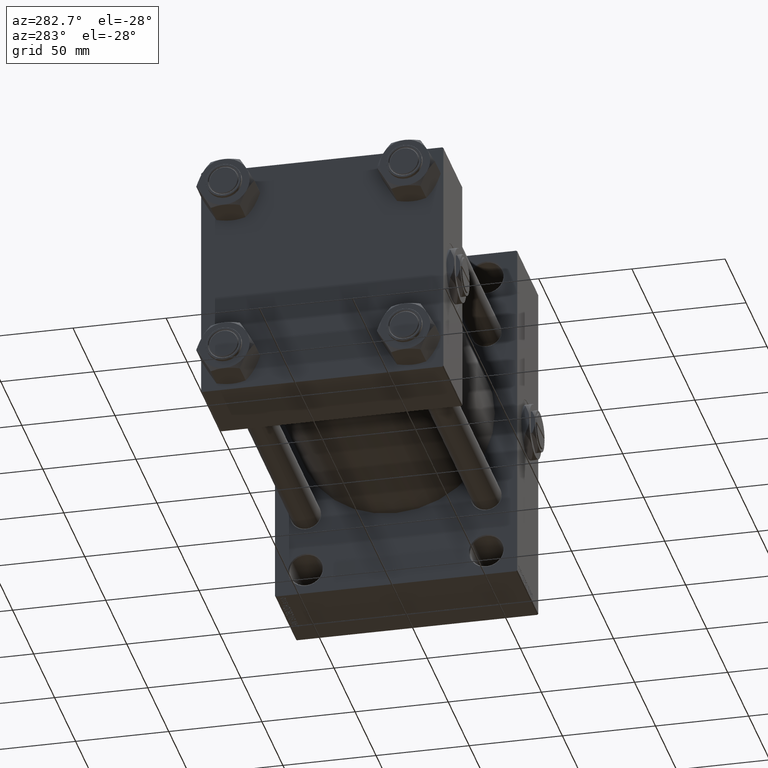
[diagram: clean part render]
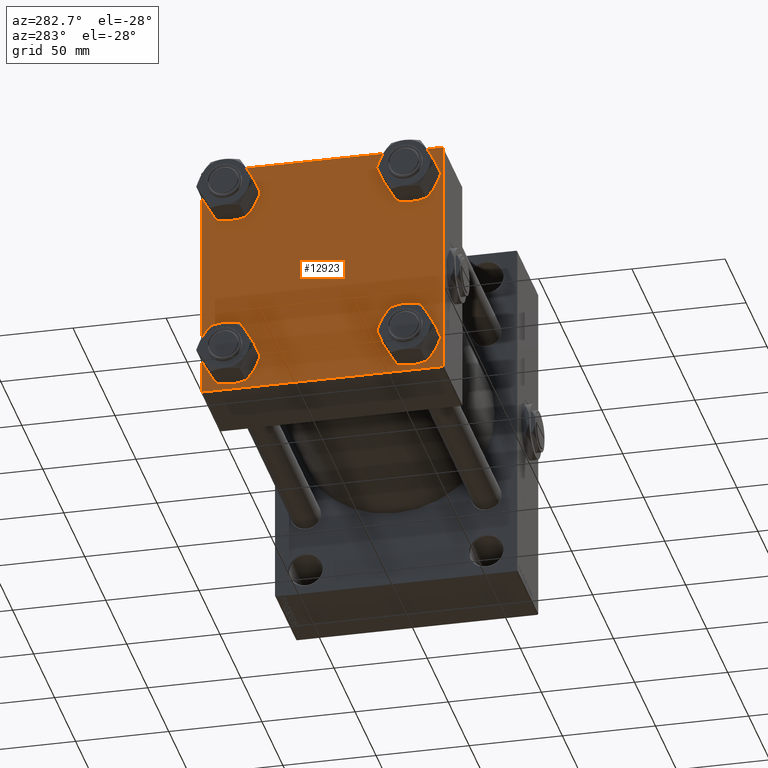
[diagram: same view with one face highlighted and labeled with its STEP entity id]
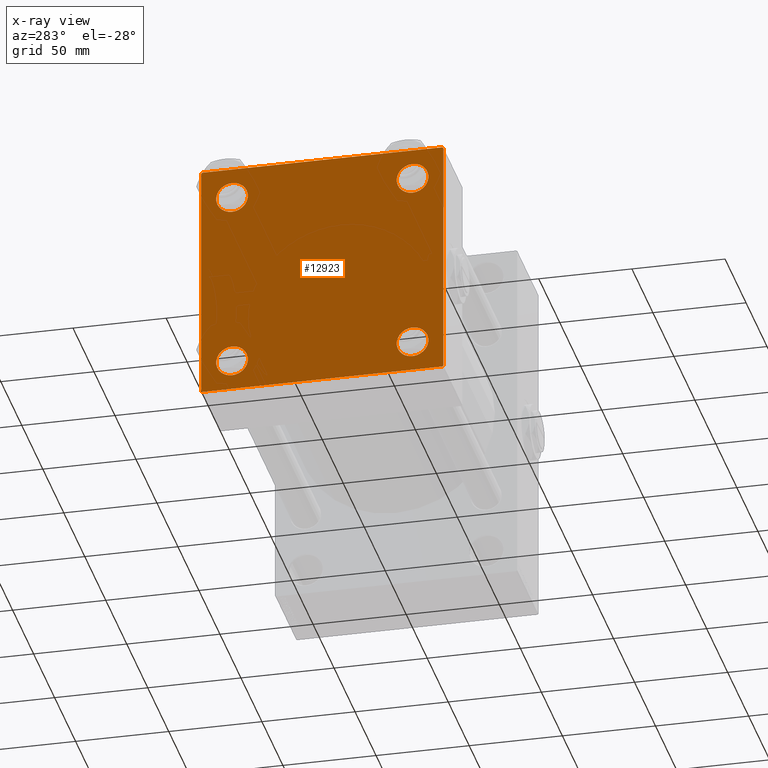
[diagram: x-ray of the same camera — body ghosted, the highlighted face saturated]
A machine part, auxiliary view. The second image highlights one B-rep face of the part: STEP entity #12923.
The next image is the same camera in x-ray: the body ghosted, the highlighted face saturated — about 0% of this face is hidden behind the body in this view.
In plain terms, the highlighted planar face has unit normal (-1, 0, 0).
Its self-contained STEP definition (entity closure, byte-faithful):
#589 = VECTOR ( 'NONE', #31071, 1000.000000000000000 ) ;
#808 = CARTESIAN_POINT ( 'NONE',  ( 0.000000000000000000, 64.74999999999998579, 64.74999999999998579 ) ) ;
#1169 = CARTESIAN_POINT ( 'NONE',  ( 0.000000000000000000, 48.45000000000000995, -39.95000000000000284 ) ) ;
#1932 = CARTESIAN_POINT ( 'NONE',  ( 0.000000000000000000, 65.00000000000000000, 65.00000000000001421 ) ) ;
#2562 = AXIS2_PLACEMENT_3D ( 'NONE', #32869, #32368, #29097 ) ;
#2691 = EDGE_CURVE ( 'NONE', #43676, #21165, #20902, .T. ) ;
#3116 = DIRECTION ( 'NONE',  ( 0.000000000000000000, 0.000000000000000000, 1.000000000000000000 ) ) ;
#3660 = EDGE_CURVE ( 'NONE', #43676, #4979, #15464, .T. ) ;
#3816 = EDGE_CURVE ( 'NONE', #38463, #4979, #20978, .T. ) ;
#4009 = CIRCLE ( 'NONE', #45007, 8.500000000000007105 ) ;
#4252 = AXIS2_PLACEMENT_3D ( 'NONE', #41486, #38210, #41988 ) ;
#4289 = DIRECTION ( 'NONE',  ( 0.000000000000000000, 0.000000000000000000, 1.000000000000000000 ) ) ;
#4535 = DIRECTION ( 'NONE',  ( 1.000000000000000000, -0.000000000000000000, 0.000000000000000000 ) ) ;
#4574 = DIRECTION ( 'NONE',  ( 0.000000000000000000, 0.7071067811865474617, -0.7071067811865474617 ) ) ;
#4979 = VERTEX_POINT ( 'NONE', #28920 ) ;
#5102 = ORIENTED_EDGE ( 'NONE', *, *, #15713, .T. ) ;
#5231 = VERTEX_POINT ( 'NONE', #30652 ) ;
#5934 = ORIENTED_EDGE ( 'NONE', *, *, #29880, .T. ) ;
#7192 = CARTESIAN_POINT ( 'NONE',  ( 0.000000000000000000, -65.00000000000000000, -64.49999999999991473 ) ) ;
#7961 = CARTESIAN_POINT ( 'NONE',  ( 0.000000000000000000, -48.44999999999999574, 56.95000000000003837 ) ) ;
#8560 = VERTEX_POINT ( 'NONE', #1169 ) ;
#8642 = CARTESIAN_POINT ( 'NONE',  ( 0.000000000000000000, 65.00000000000000000, -64.99999999999998579 ) ) ;
#10242 = FACE_BOUND ( 'NONE', #19520, .T. ) ;
#10280 = DIRECTION ( 'NONE',  ( 1.000000000000000000, -0.000000000000000000, 0.000000000000000000 ) ) ;
#10340 = DIRECTION ( 'NONE',  ( 0.000000000000000000, 0.000000000000000000, 1.000000000000000000 ) ) ;
#11015 = DIRECTION ( 'NONE',  ( 0.000000000000000000, 0.000000000000000000, 1.000000000000000000 ) ) ;
#12061 = ORIENTED_EDGE ( 'NONE', *, *, #21739, .T. ) ;
#12620 = VECTOR ( 'NONE', #36253, 1000.000000000000000 ) ;
#12923 = ADVANCED_FACE ( 'NONE', ( #10242, #48260, #13775, #29623, #21824 ), #24854, .T. ) ;
#13017 = EDGE_CURVE ( 'NONE', #29569, #31784, #30612, .T. ) ;
#13185 = LINE ( 'NONE', #39863, #45792 ) ;
#13775 = FACE_BOUND ( 'NONE', #14394, .T. ) ;
#13780 = DIRECTION ( 'NONE',  ( 0.000000000000000000, 0.000000000000000000, 1.000000000000000000 ) ) ;
#13831 = CARTESIAN_POINT ( 'NONE',  ( 0.000000000000000000, -48.44999999999999574, -56.95000000000003837 ) ) ;
#14394 = EDGE_LOOP ( 'NONE', ( #27171, #28087 ) ) ;
#14509 = CARTESIAN_POINT ( 'NONE',  ( 0.000000000000000000, 0.000000000000000000, 0.000000000000000000 ) ) ;
#14619 = CIRCLE ( 'NONE', #2562, 8.500000000000007105 ) ;
#14692 = AXIS2_PLACEMENT_3D ( 'NONE', #49286, #10280, #11015 ) ;
#15464 = LINE ( 'NONE', #19239, #589 ) ;
#15713 = EDGE_CURVE ( 'NONE', #38463, #27209, #31987, .T. ) ;
#15747 = CARTESIAN_POINT ( 'NONE',  ( 0.000000000000000000, -48.44999999999999574, -39.95000000000001705 ) ) ;
#15845 = AXIS2_PLACEMENT_3D ( 'NONE', #40805, #44327, #10340 ) ;
#16548 = EDGE_CURVE ( 'NONE', #20459, #22820, #14619, .T. ) ;
#16924 = ORIENTED_EDGE ( 'NONE', *, *, #28062, .T. ) ;
#18537 = DIRECTION ( 'NONE',  ( 1.000000000000000000, -0.000000000000000000, 0.000000000000000000 ) ) ;
#19239 = CARTESIAN_POINT ( 'NONE',  ( -0.000000000000000000, -64.74999999999819522, 64.75000000000179057 ) ) ;
#19411 = EDGE_CURVE ( 'NONE', #28740, #8560, #32377, .T. ) ;
#19520 = EDGE_LOOP ( 'NONE', ( #30563, #42824 ) ) ;
#19681 = CARTESIAN_POINT ( 'NONE',  ( 0.000000000000000000, 65.00000000000000000, -64.49999999999995737 ) ) ;
#19984 = DIRECTION ( 'NONE',  ( 0.000000000000000000, -1.000000000000000000, -1.067522139062650425E-16 ) ) ;
#20459 = VERTEX_POINT ( 'NONE', #34751 ) ;
#20809 = EDGE_CURVE ( 'NONE', #22820, #20459, #40392, .T. ) ;
#20902 = LINE ( 'NONE', #36500, #12620 ) ;
#20978 = LINE ( 'NONE', #25003, #35939 ) ;
#21165 = VERTEX_POINT ( 'NONE', #7192 ) ;
#21739 = EDGE_CURVE ( 'NONE', #22234, #38034, #28346, .T. ) ;
#21824 = FACE_OUTER_BOUND ( 'NONE', #29818, .T. ) ;
#22234 = VERTEX_POINT ( 'NONE', #15747 ) ;
#22322 = ORIENTED_EDGE ( 'NONE', *, *, #48523, .T. ) ;
#22820 = VERTEX_POINT ( 'NONE', #7961 ) ;
#23096 = CIRCLE ( 'NONE', #15845, 8.500000000000007105 ) ;
#23239 = AXIS2_PLACEMENT_3D ( 'NONE', #31948, #4535, #4289 ) ;
#23474 = DIRECTION ( 'NONE',  ( 0.000000000000000000, 0.000000000000000000, 1.000000000000000000 ) ) ;
#24292 = AXIS2_PLACEMENT_3D ( 'NONE', #48438, #49176, #3116 ) ;
#24854 = PLANE ( 'NONE',  #37807 ) ;
#25003 = CARTESIAN_POINT ( 'NONE',  ( 0.000000000000000000, 65.00000000000000000, 65.00000000000001421 ) ) ;
#25358 = CARTESIAN_POINT ( 'NONE',  ( 0.000000000000000000, -48.44999999999999574, -48.45000000000003126 ) ) ;
#26143 = ORIENTED_EDGE ( 'NONE', *, *, #2691, .F. ) ;
#26839 = DIRECTION ( 'NONE',  ( -0.000000000000000000, -0.7071067811865474617, -0.7071067811865474617 ) ) ;
#27171 = ORIENTED_EDGE ( 'NONE', *, *, #32754, .T. ) ;
#27209 = VERTEX_POINT ( 'NONE', #48747 ) ;
#27785 = LINE ( 'NONE', #8642, #37070 ) ;
#28062 = EDGE_CURVE ( 'NONE', #38034, #22234, #46252, .T. ) ;
#28087 = ORIENTED_EDGE ( 'NONE', *, *, #19411, .T. ) ;
#28346 = CIRCLE ( 'NONE', #4252, 8.500000000000007105 ) ;
#28503 = EDGE_LOOP ( 'NONE', ( #12061, #16924 ) ) ;
#28557 = AXIS2_PLACEMENT_3D ( 'NONE', #25358, #18537, #13780 ) ;
#28740 = VERTEX_POINT ( 'NONE', #31920 ) ;
#28920 = CARTESIAN_POINT ( 'NONE',  ( 0.000000000000000000, -64.49999999999997158, 65.00000000000000000 ) ) ;
#29097 = DIRECTION ( 'NONE',  ( 0.000000000000000000, 0.000000000000000000, 1.000000000000000000 ) ) ;
#29569 = VERTEX_POINT ( 'NONE', #19681 ) ;
#29623 = FACE_BOUND ( 'NONE', #38093, .T. ) ;
#29677 = ORIENTED_EDGE ( 'NONE', *, *, #3660, .T. ) ;
#29736 = CARTESIAN_POINT ( 'NONE',  ( 0.000000000000000000, 64.49999999999997158, -64.99999999999998579 ) ) ;
#29818 = EDGE_LOOP ( 'NONE', ( #5934, #42764, #22322, #37300, #26143, #29677, #38985, #5102 ) ) ;
#29880 = EDGE_CURVE ( 'NONE', #27209, #29569, #32621, .T. ) ;
#30563 = ORIENTED_EDGE ( 'NONE', *, *, #20809, .T. ) ;
#30612 = LINE ( 'NONE', #45971, #36984 ) ;
#30652 = CARTESIAN_POINT ( 'NONE',  ( 0.000000000000000000, -64.49999999999994316, -65.00000000000000000 ) ) ;
#30774 = CARTESIAN_POINT ( 'NONE',  ( 0.000000000000000000, 48.45000000000000995, 48.45000000000001705 ) ) ;
#31071 = DIRECTION ( 'NONE',  ( -0.000000000000000000, 0.7071067811865672237, 0.7071067811865279218 ) ) ;
#31784 = VERTEX_POINT ( 'NONE', #29736 ) ;
#31920 = CARTESIAN_POINT ( 'NONE',  ( 0.000000000000000000, 48.45000000000000995, -56.95000000000002416 ) ) ;
#31948 = CARTESIAN_POINT ( 'NONE',  ( 0.000000000000000000, 48.45000000000000995, 48.45000000000001705 ) ) ;
#31956 = ORIENTED_EDGE ( 'NONE', *, *, #41040, .T. ) ;
#31987 = LINE ( 'NONE', #808, #32270 ) ;
#32270 = VECTOR ( 'NONE', #4574, 1000.000000000000114 ) ;
#32368 = DIRECTION ( 'NONE',  ( 1.000000000000000000, -0.000000000000000000, 0.000000000000000000 ) ) ;
#32377 = CIRCLE ( 'NONE', #14692, 8.500000000000007105 ) ;
#32621 = LINE ( 'NONE', #1932, #35859 ) ;
#32754 = EDGE_CURVE ( 'NONE', #8560, #28740, #23096, .T. ) ;
#32869 = CARTESIAN_POINT ( 'NONE',  ( 0.000000000000000000, -48.44999999999999574, 48.45000000000003126 ) ) ;
#34751 = CARTESIAN_POINT ( 'NONE',  ( 0.000000000000000000, -48.44999999999999574, 39.95000000000001705 ) ) ;
#35859 = VECTOR ( 'NONE', #44455, 1000.000000000000000 ) ;
#35939 = VECTOR ( 'NONE', #19984, 1000.000000000000000 ) ;
#36096 = DIRECTION ( 'NONE',  ( 0.000000000000000000, -0.7071067811865279218, 0.7071067811865671127 ) ) ;
#36253 = DIRECTION ( 'NONE',  ( 0.000000000000000000, 0.000000000000000000, -1.000000000000000000 ) ) ;
#36427 = DIRECTION ( 'NONE',  ( -0.000000000000000000, 0.000000000000000000, 1.000000000000000000 ) ) ;
#36500 = CARTESIAN_POINT ( 'NONE',  ( 0.000000000000000000, -65.00000000000000000, 65.00000000000000000 ) ) ;
#36984 = VECTOR ( 'NONE', #26839, 1000.000000000000114 ) ;
#37070 = VECTOR ( 'NONE', #39605, 1000.000000000000000 ) ;
#37300 = ORIENTED_EDGE ( 'NONE', *, *, #45617, .T. ) ;
#37807 = AXIS2_PLACEMENT_3D ( 'NONE', #14509, #44975, #36427 ) ;
#38034 = VERTEX_POINT ( 'NONE', #13831 ) ;
#38093 = EDGE_LOOP ( 'NONE', ( #48680, #31956 ) ) ;
#38210 = DIRECTION ( 'NONE',  ( 1.000000000000000000, -0.000000000000000000, 0.000000000000000000 ) ) ;
#38463 = VERTEX_POINT ( 'NONE', #44606 ) ;
#38871 = VERTEX_POINT ( 'NONE', #44300 ) ;
#38985 = ORIENTED_EDGE ( 'NONE', *, *, #3816, .F. ) ;
#39605 = DIRECTION ( 'NONE',  ( 0.000000000000000000, -1.000000000000000000, -1.067522139062650425E-16 ) ) ;
#39863 = CARTESIAN_POINT ( 'NONE',  ( 0.000000000000000000, -64.75000000000176215, -64.74999999999816680 ) ) ;
#40392 = CIRCLE ( 'NONE', #24292, 8.500000000000007105 ) ;
#40805 = CARTESIAN_POINT ( 'NONE',  ( 0.000000000000000000, 48.45000000000000995, -48.45000000000001705 ) ) ;
#40856 = CARTESIAN_POINT ( 'NONE',  ( 0.000000000000000000, -65.00000000000000000, 64.50000000000000000 ) ) ;
#41040 = EDGE_CURVE ( 'NONE', #41875, #38871, #42540, .T. ) ;
#41486 = CARTESIAN_POINT ( 'NONE',  ( 0.000000000000000000, -48.44999999999999574, -48.45000000000003126 ) ) ;
#41875 = VERTEX_POINT ( 'NONE', #45089 ) ;
#41988 = DIRECTION ( 'NONE',  ( 0.000000000000000000, 0.000000000000000000, 1.000000000000000000 ) ) ;
#42540 = CIRCLE ( 'NONE', #23239, 8.500000000000007105 ) ;
#42764 = ORIENTED_EDGE ( 'NONE', *, *, #13017, .T. ) ;
#42824 = ORIENTED_EDGE ( 'NONE', *, *, #16548, .T. ) ;
#43676 = VERTEX_POINT ( 'NONE', #40856 ) ;
#44300 = CARTESIAN_POINT ( 'NONE',  ( 0.000000000000000000, 48.45000000000000995, 56.95000000000002416 ) ) ;
#44327 = DIRECTION ( 'NONE',  ( 1.000000000000000000, -0.000000000000000000, 0.000000000000000000 ) ) ;
#44455 = DIRECTION ( 'NONE',  ( 0.000000000000000000, 0.000000000000000000, -1.000000000000000000 ) ) ;
#44606 = CARTESIAN_POINT ( 'NONE',  ( 0.000000000000000000, 64.49999999999997158, 65.00000000000001421 ) ) ;
#44975 = DIRECTION ( 'NONE',  ( -1.000000000000000000, 0.000000000000000000, -0.000000000000000000 ) ) ;
#45007 = AXIS2_PLACEMENT_3D ( 'NONE', #30774, #46134, #23474 ) ;
#45089 = CARTESIAN_POINT ( 'NONE',  ( 0.000000000000000000, 48.45000000000000995, 39.95000000000000284 ) ) ;
#45617 = EDGE_CURVE ( 'NONE', #5231, #21165, #13185, .T. ) ;
#45774 = EDGE_CURVE ( 'NONE', #38871, #41875, #4009, .T. ) ;
#45792 = VECTOR ( 'NONE', #36096, 1000.000000000000000 ) ;
#45971 = CARTESIAN_POINT ( 'NONE',  ( 0.000000000000000000, 64.74999999999997158, -64.74999999999997158 ) ) ;
#46134 = DIRECTION ( 'NONE',  ( 1.000000000000000000, -0.000000000000000000, 0.000000000000000000 ) ) ;
#46252 = CIRCLE ( 'NONE', #28557, 8.500000000000007105 ) ;
#48260 = FACE_BOUND ( 'NONE', #28503, .T. ) ;
#48438 = CARTESIAN_POINT ( 'NONE',  ( 0.000000000000000000, -48.44999999999999574, 48.45000000000003126 ) ) ;
#48523 = EDGE_CURVE ( 'NONE', #31784, #5231, #27785, .T. ) ;
#48680 = ORIENTED_EDGE ( 'NONE', *, *, #45774, .T. ) ;
#48747 = CARTESIAN_POINT ( 'NONE',  ( 0.000000000000000000, 65.00000000000000000, 64.49999999999998579 ) ) ;
#49176 = DIRECTION ( 'NONE',  ( 1.000000000000000000, -0.000000000000000000, 0.000000000000000000 ) ) ;
#49286 = CARTESIAN_POINT ( 'NONE',  ( 0.000000000000000000, 48.45000000000000995, -48.45000000000001705 ) ) ;